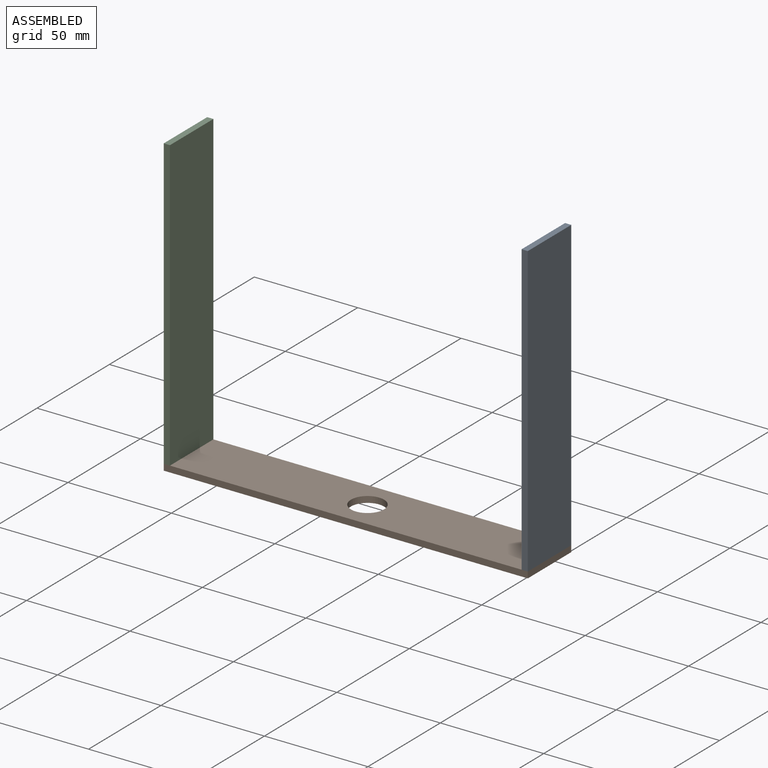
[diagram: assembled view]
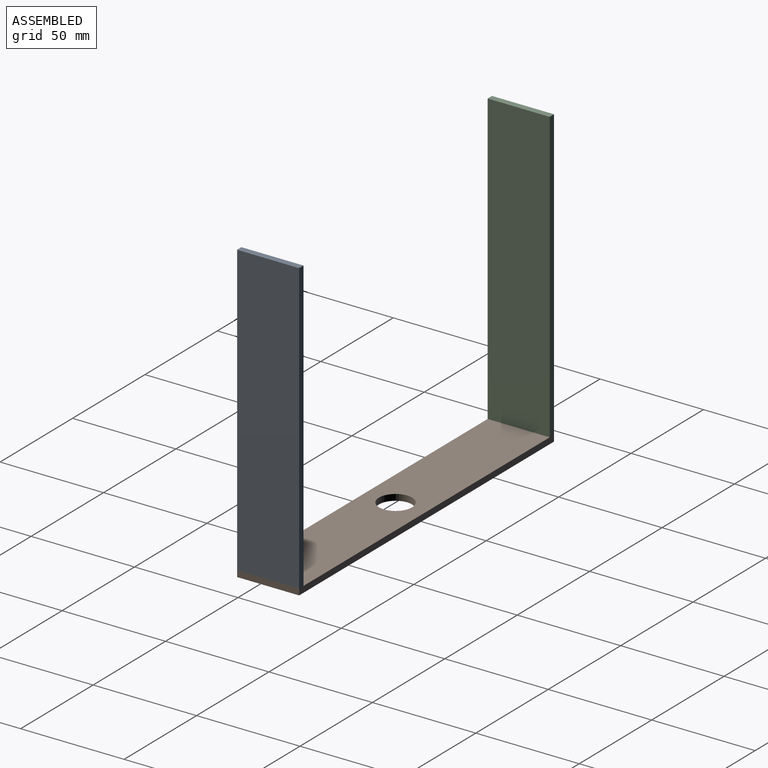
[diagram: assembled view, second angle]
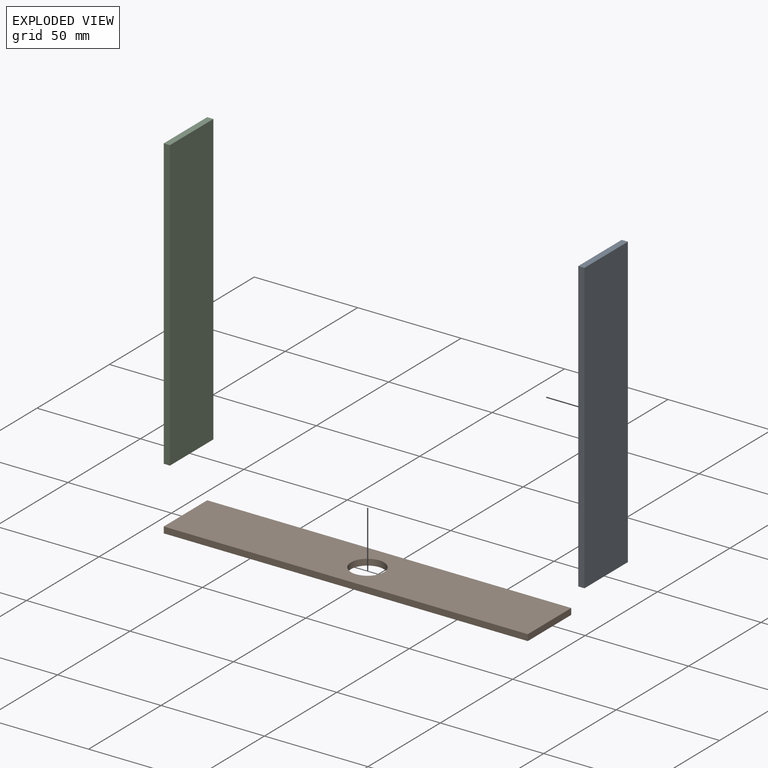
[diagram: exploded view]
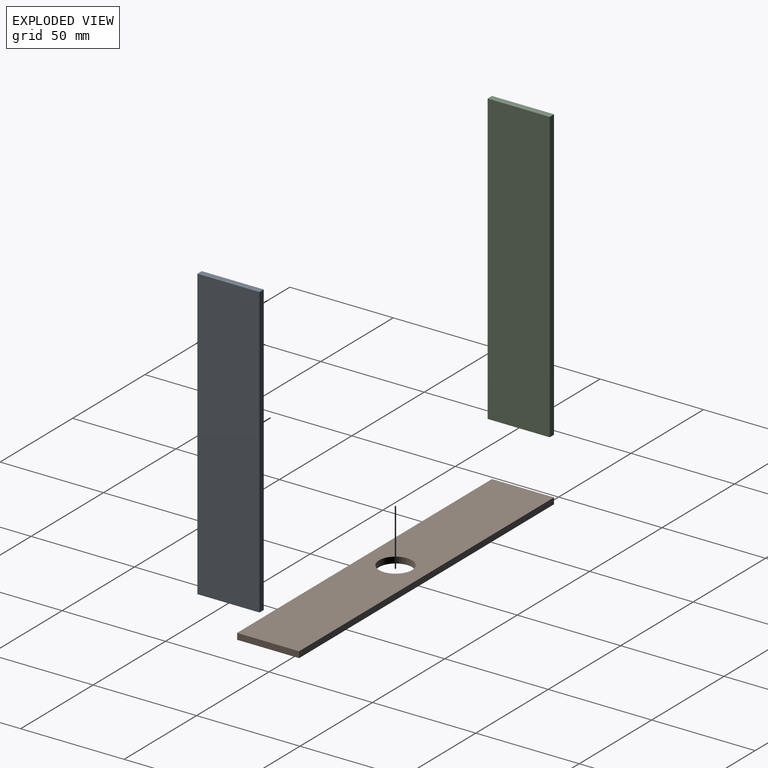
[diagram: exploded view, second angle]
ASSEMBLY  parts=3 mates=2
PART A: 6 faces, bbox 140x30x3 mm
  f0: plane 140x3mm, normal (0,1,0), area 420mm2, adj f1,f3,f4,f5
  f1: plane 30x3mm, normal (-1,0,0), area 90mm2, adj f0,f2,f4,f5
  f2: plane 140x3mm, normal (0,-1,0), area 420mm2, adj f1,f3,f4,f5
  f3: plane 30x3mm, normal (1,0,0), area 90mm2, adj f0,f2,f4,f5
  f4: plane 140x30mm, normal (0,0,1), area 4200mm2, adj f0,f1,f2,f3
  f5: plane 140x30mm, normal (0,0,-1), area 4200mm2, adj f0,f1,f2,f3
PART B: 7 faces, bbox 176x30x3 mm
  f0: plane 176x3mm, normal (0,1,0), area 528mm2, adj f1,f4,f5,f6
  f1: plane 30x3mm, normal (-1,0,0), area 90mm2, adj f0,f2,f5,f6
  f2: plane 176x3mm, normal (0,-1,0), area 528mm2, adj f1,f4,f5,f6
  f3: cylinder r=8mm len=16mm, axis (0,0,-1), area 150.8mm2, adj f5,f6
  f4: plane 30x3mm, normal (1,0,0), area 90mm2, adj f0,f2,f5,f6
  f5: plane 176x30mm, normal (0,0,1), area 5078.9mm2, adj f0,f1,f2,f3,f4
  f6: plane 176x30mm, normal (0,0,-1), area 5078.9mm2, adj f0,f1,f2,f3,f4
PART C: same geometry as A
PLACE A rot(axis=(0,1,0),90deg) t=(235.64,6.65,98.73)mm
PLACE B t=(62.64,6.65,-44.27)mm
PLACE C rot(axis=(0,1,0),90deg) t=(62.64,6.65,98.73)mm
MATE fastened C.f5 <-> B.f1  axis (-1,0,0) through (62.64,-8.35,-41.27)mm
MATE fastened A.f4 <-> B.f4  axis (1,0,0) through (238.64,-8.35,-41.27)mm
